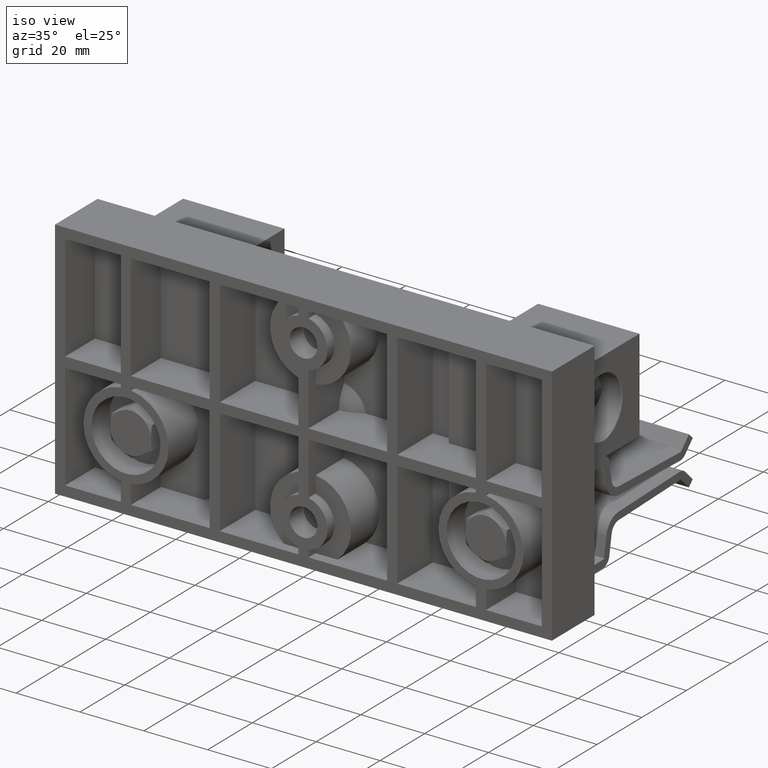
[diagram: clean part render]
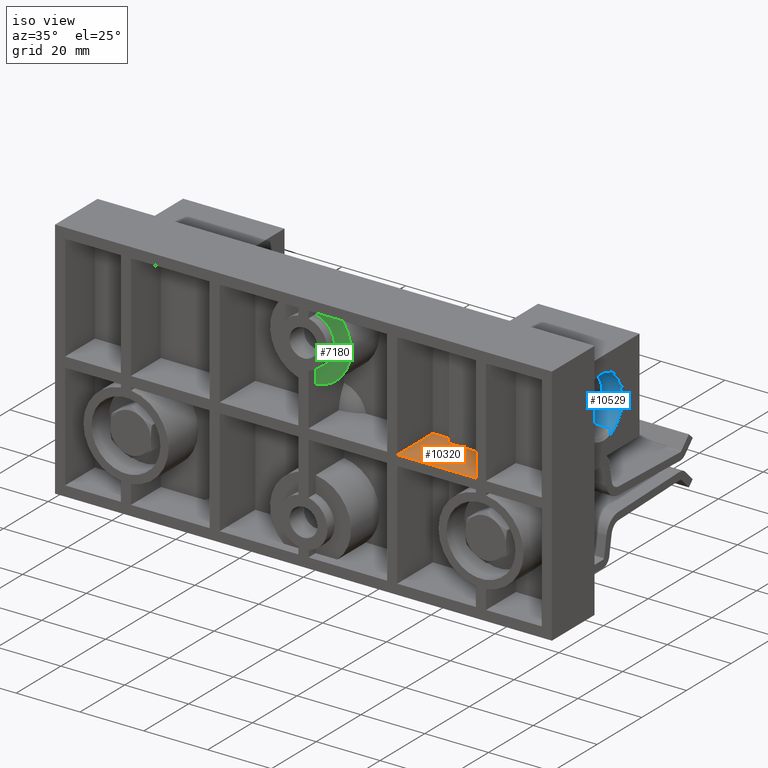
[diagram: same view with three faces highlighted in distinct colors, each labeled with its STEP entity id]
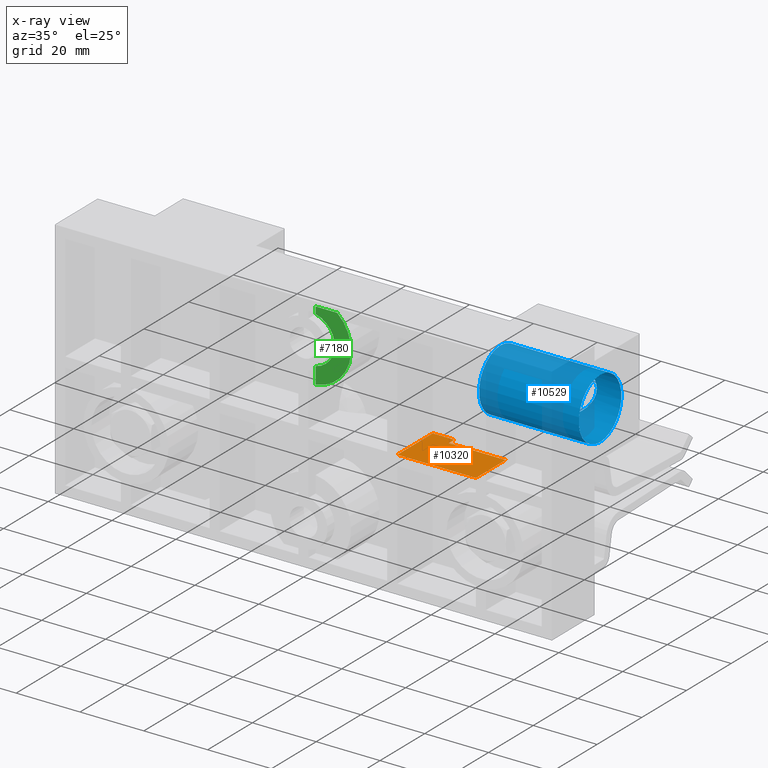
[diagram: x-ray of the same camera — body ghosted, the three highlighted faces saturated]
A machine part, iso view with three faces highlighted in distinct colors.
The next image is the same camera in x-ray (body ghosted, the three faces saturated) — at least one of them is partly hidden behind the body in this view.
Their STEP definitions:

[orange] entity #10320 — the highlighted planar face has unit normal (0, -0, -1).
#706 = EDGE_CURVE ( 'NONE', #15453, #16737, #32580, .T. ) ;
#3698 = VERTEX_POINT ( 'NONE', #7718 ) ;
#4290 = CARTESIAN_POINT ( 'NONE',  ( 1.157500000000000200, -6.491294169886310300, 0.06249999999999972900 ) ) ;
#5666 = DIRECTION ( 'NONE',  ( 0.0000000000000000000, 1.000000000000000000, 1.848892746611746400E-032 ) ) ;
#5689 = ORIENTED_EDGE ( 'NONE', *, *, #15011, .T. ) ;
#6105 = FACE_OUTER_BOUND ( 'NONE', #31177, .T. ) ;
#6520 = CARTESIAN_POINT ( 'NONE',  ( 2.127500000000000400, 1.251854463851701300E-033, 0.06249999999999989600 ) ) ;
#6596 = CARTESIAN_POINT ( 'NONE',  ( 1.425000000000000000, 0.6500000000000000200, 0.06249999999999981300 ) ) ;
#6764 = ORIENTED_EDGE ( 'NONE', *, *, #706, .F. ) ;
#7705 = VECTOR ( 'NONE', #14120, 39.37007874015748100 ) ;
#7718 = CARTESIAN_POINT ( 'NONE',  ( 2.127500000000000400, 0.5250000000000000200, 0.06249999999999999300 ) ) ;
#7732 = VECTOR ( 'NONE', #12566, 39.37007874015748100 ) ;
#8524 = CARTESIAN_POINT ( 'NONE',  ( 2.127500000000000400, 1.251854463851701300E-033, 0.06249999999999989600 ) ) ;
#8803 = ORIENTED_EDGE ( 'NONE', *, *, #23106, .F. ) ;
#9694 = CARTESIAN_POINT ( 'NONE',  ( 1.425000000000000000, 0.6250000000000000000, 0.06249999999999981300 ) ) ;
#10023 = CARTESIAN_POINT ( 'NONE',  ( 1.157500000000000200, 1.251854463851696800E-033, 0.06249999999999967400 ) ) ;
#10266 = EDGE_CURVE ( 'NONE', #15453, #18958, #19091, .T. ) ;
#10320 = ADVANCED_FACE ( 'NONE', ( #6105 ), #18923, .F. ) ;
#12053 = EDGE_CURVE ( 'NONE', #18958, #3698, #26122, .T. ) ;
#12566 = DIRECTION ( 'NONE',  ( -1.000000000000000000, -3.525645469518481200E-048, -1.760211336123880400E-016 ) ) ;
#13810 = CARTESIAN_POINT ( 'NONE',  ( 1.425000000000000000, 0.5250000000000000200, 0.06249999999999981300 ) ) ;
#13826 = CARTESIAN_POINT ( 'NONE',  ( 2.127500000000000400, -6.491294169886310300, 0.06249999999999989600 ) ) ;
#14120 = DIRECTION ( 'NONE',  ( -1.000000000000000000, -3.525645469518481200E-048, -1.760211336123880400E-016 ) ) ;
#14892 = EDGE_CURVE ( 'NONE', #30348, #16737, #18260, .T. ) ;
#15011 = EDGE_CURVE ( 'NONE', #3698, #31193, #21455, .T. ) ;
#15453 = VERTEX_POINT ( 'NONE', #10023 ) ;
#16452 = DIRECTION ( 'NONE',  ( -1.000000000000000000, -3.525645469518481200E-048, -1.760211336123880400E-016 ) ) ;
#16737 = VERTEX_POINT ( 'NONE', #17320 ) ;
#16878 = LINE ( 'NONE', #6596, #30667 ) ;
#17320 = CARTESIAN_POINT ( 'NONE',  ( 1.157500000000000200, 0.6250000000000000000, 0.06249999999999967400 ) ) ;
#18260 = LINE ( 'NONE', #28109, #7732 ) ;
#18739 = VECTOR ( 'NONE', #33457, 39.37007874015748100 ) ;
#18923 = PLANE ( 'NONE',  #24943 ) ;
#18958 = VERTEX_POINT ( 'NONE', #6520 ) ;
#19091 = LINE ( 'NONE', #8524, #32923 ) ;
#21376 = ORIENTED_EDGE ( 'NONE', *, *, #10266, .T. ) ;
#21455 = LINE ( 'NONE', #29641, #7705 ) ;
#23106 = EDGE_CURVE ( 'NONE', #30348, #31193, #16878, .T. ) ;
#23248 = CARTESIAN_POINT ( 'NONE',  ( 2.127500000000000400, -6.491294169886310300, 0.06249999999999989600 ) ) ;
#24776 = DIRECTION ( 'NONE',  ( 0.0000000000000000000, -1.000000000000000000, -1.848892746611746400E-032 ) ) ;
#24943 = AXIS2_PLACEMENT_3D ( 'NONE', #13826, #32000, #16452 ) ;
#25151 = ORIENTED_EDGE ( 'NONE', *, *, #12053, .T. ) ;
#26122 = LINE ( 'NONE', #23248, #33026 ) ;
#26669 = DIRECTION ( 'NONE',  ( 1.000000000000000000, 3.525645469518481200E-048, 1.760211336123880600E-016 ) ) ;
#28109 = CARTESIAN_POINT ( 'NONE',  ( 2.127500000000000400, 0.6250000000000000000, 0.06249999999999989600 ) ) ;
#28942 = ORIENTED_EDGE ( 'NONE', *, *, #14892, .T. ) ;
#29641 = CARTESIAN_POINT ( 'NONE',  ( 2.670000000000000800, 0.5250000000000000200, 0.06250000000000008300 ) ) ;
#30348 = VERTEX_POINT ( 'NONE', #9694 ) ;
#30667 = VECTOR ( 'NONE', #24776, 39.37007874015748100 ) ;
#31177 = EDGE_LOOP ( 'NONE', ( #25151, #5689, #8803, #28942, #6764, #21376 ) ) ;
#31193 = VERTEX_POINT ( 'NONE', #13810 ) ;
#32000 = DIRECTION ( 'NONE',  ( 1.760211336123880400E-016, -2.002967142162725300E-032, -1.000000000000000000 ) ) ;
#32580 = LINE ( 'NONE', #4290, #18739 ) ;
#32923 = VECTOR ( 'NONE', #26669, 39.37007874015748100 ) ;
#33026 = VECTOR ( 'NONE', #5666, 39.37007874015748100 ) ;
#33457 = DIRECTION ( 'NONE',  ( 0.0000000000000000000, 1.000000000000000000, 1.848892746611746400E-032 ) ) ;

[blue] entity #10529 — the highlighted cylindrical surface (bore or boss wall) has radius 9.525 mm, axis along (1, 0, -0).
#77 = CARTESIAN_POINT ( 'NONE',  ( 2.076729371973679700, 1.456088121580337000, 0.2605831482120392600 ) ) ;
#192 = CARTESIAN_POINT ( 'NONE',  ( 1.889426613517369600, 1.585115899064179400, 0.4658351807576715000 ) ) ;
#300 = CARTESIAN_POINT ( 'NONE',  ( 1.927638943650036700, 1.554348950492414200, 0.7220675081575735900 ) ) ;
#411 = CARTESIAN_POINT ( 'NONE',  ( 2.200595194546536500, 1.427274423711046000, 0.8645097015957117200 ) ) ;
#533 = CARTESIAN_POINT ( 'NONE',  ( 2.434920143995373800, 1.540785408963850600, 0.7471081315087929600 ) ) ;
#1871 = AXIS2_PLACEMENT_3D ( 'NONE', #14802, #32978, #17431 ) ;
#2020 = ORIENTED_EDGE ( 'NONE', *, *, #20491, .T. ) ;
#2505 = CARTESIAN_POINT ( 'NONE',  ( 2.484203384870641500, 1.579890123181407800, 0.4461036839594217900 ) ) ;
#2609 = DIRECTION ( 'NONE',  ( 1.000000000000000000, 2.259772907814062200E-018, -1.249000902703300900E-016 ) ) ;
#2616 = CARTESIAN_POINT ( 'NONE',  ( 2.274996675548262900, 1.443178687525208800, 0.2505498501693820300 ) ) ;
#2719 = CARTESIAN_POINT ( 'NONE',  ( 2.032514348025869800, 1.480038386484674000, 0.2813997691194785600 ) ) ;
#2827 = CARTESIAN_POINT ( 'NONE',  ( 1.879873545745861300, 1.593015831589233300, 0.5079302932660024700 ) ) ;
#2936 = CARTESIAN_POINT ( 'NONE',  ( 1.957381491978031200, 1.531432401457970100, 0.7615666289502911500 ) ) ;
#3052 = CARTESIAN_POINT ( 'NONE',  ( 2.233170940279762400, 1.431465004822856800, 0.8616960141459256700 ) ) ;
#3169 = CARTESIAN_POINT ( 'NONE',  ( 2.467900366343614800, 1.566660563706562000, 0.6964205671180381300 ) ) ;
#5148 = CARTESIAN_POINT ( 'NONE',  ( 2.472172709297785400, 1.570120347077986800, 0.4173067961107270200 ) ) ;
#5269 = CARTESIAN_POINT ( 'NONE',  ( 2.233624354778424200, 1.431557944320314100, 0.2423672789926299700 ) ) ;
#5308 = CARTESIAN_POINT ( 'NONE',  ( 1.575000000000002000, 1.220000000000000200, 0.1770000000000012100 ) ) ;
#5377 = CARTESIAN_POINT ( 'NONE',  ( 1.985399832363596600, 1.511100703186462100, 0.3150025900852628200 ) ) ;
#5487 = CARTESIAN_POINT ( 'NONE',  ( 1.877476023150124900, 1.595019980692326200, 0.5622380897981260600 ) ) ;
#5599 = CARTESIAN_POINT ( 'NONE',  ( 2.000070276166645100, 1.500877146243951200, 0.8009045910841198200 ) ) ;
#5700 = CARTESIAN_POINT ( 'NONE',  ( 2.264309585431889100, 1.439987562914610200, 0.8557174141473121700 ) ) ;
#5807 = CARTESIAN_POINT ( 'NONE',  ( 2.484104695817396900, 1.579809461384663400, 0.6581651954283848100 ) ) ;
#6044 = FACE_OUTER_BOUND ( 'NONE', #29903, .T. ) ;
#7245 = CIRCLE ( 'NONE', #26959, 0.3749999999999997800 ) ;
#7755 = CARTESIAN_POINT ( 'NONE',  ( 2.457607222590166600, 1.558486696659012700, 0.3903000177563564800 ) ) ;
#7875 = CARTESIAN_POINT ( 'NONE',  ( 2.190179932019259200, 1.426430009674327000, 0.2389351250495142200 ) ) ;
#7982 = CARTESIAN_POINT ( 'NONE',  ( 1.945154614197689400, 1.540728088072823800, 0.3567961740516500400 ) ) ;
#8100 = CARTESIAN_POINT ( 'NONE',  ( 1.880281309584269600, 1.592684893733345100, 0.5950035460913799500 ) ) ;
#8204 = CARTESIAN_POINT ( 'NONE',  ( 2.048948502195003600, 1.470242094124482300, 0.8315524413779806800 ) ) ;
#8318 = CARTESIAN_POINT ( 'NONE',  ( 2.293747620889427600, 1.451632752042168800, 0.8469523053104890400 ) ) ;
#8442 = CARTESIAN_POINT ( 'NONE',  ( 2.493431239947439400, 1.587474724682770300, 0.6275179987207620800 ) ) ;
#10379 = CARTESIAN_POINT ( 'NONE',  ( 2.435072418738516700, 1.540901560272484300, 0.3570780561970851000 ) ) ;
#10496 = CARTESIAN_POINT ( 'NONE',  ( 2.146715002092181500, 1.431487746786460400, 0.2423194597841897600 ) ) ;
#10529 = ADVANCED_FACE ( 'NONE', ( #26774, #19837, #6044 ), #22653, .F. ) ;
#10610 = CARTESIAN_POINT ( 'NONE',  ( 1.922611024469002400, 1.558314084703363400, 0.3899390096383008000 ) ) ;
#10724 = CARTESIAN_POINT ( 'NONE',  ( 1.888582233568351100, 1.585807708269862300, 0.6372395778091134400 ) ) ;
#10837 = CARTESIAN_POINT ( 'NONE',  ( 2.104823711560048800, 1.443246645103392500, 0.8534003888910246500 ) ) ;
#10942 = CARTESIAN_POINT ( 'NONE',  ( 2.330589071167014300, 1.469975404053278900, 0.8317915050968495100 ) ) ;
#11062 = CARTESIAN_POINT ( 'NONE',  ( 2.502500000000003100, 1.594999999999999300, 0.5740927859111840700 ) ) ;
#12156 = VERTEX_POINT ( 'NONE', #13321 ) ;
#12843 = CARTESIAN_POINT ( 'NONE',  ( 2.502500000000003100, 1.594999999999999500, 0.5520000000000008200 ) ) ;
#12953 = CARTESIAN_POINT ( 'NONE',  ( 2.394846192405821300, 1.511274027202478300, 0.3152144535535706400 ) ) ;
#13060 = CARTESIAN_POINT ( 'NONE',  ( 2.115652693129075800, 1.440000808203548000, 0.2482921960399988000 ) ) ;
#13169 = CARTESIAN_POINT ( 'NONE',  ( 1.908006897051064900, 1.569975580438093900, 0.4169324759415570800 ) ) ;
#13277 = CARTESIAN_POINT ( 'NONE',  ( 1.907672666767200200, 1.570244988554368800, 0.6863706906566156000 ) ) ;
#13321 = CARTESIAN_POINT ( 'NONE',  ( 2.502500000000002200, 1.594999999999999800, 0.5520000000000008200 ) ) ;
#13393 = CARTESIAN_POINT ( 'NONE',  ( 2.146180077662003700, 1.431597836331096200, 0.8616055508102584700 ) ) ;
#13511 = CARTESIAN_POINT ( 'NONE',  ( 2.379511283201087400, 1.500593694086973500, 0.8012220869116526400 ) ) ;
#14717 = DIRECTION ( 'NONE',  ( 1.000000000000000000, 2.259772907814062200E-018, -1.249000902703300900E-016 ) ) ;
#14802 = CARTESIAN_POINT ( 'NONE',  ( 2.805000000000001900, 1.220000000000000200, 0.5520000000000008200 ) ) ;
#14920 = AXIS2_PLACEMENT_3D ( 'NONE', #22515, #14717, #17455 ) ;
#15279 = EDGE_CURVE ( 'NONE', #30820, #30820, #7245, .T. ) ;
#15463 = CARTESIAN_POINT ( 'NONE',  ( 2.500184974921040700, 1.593064662412489100, 0.5083718195304811600 ) ) ;
#15581 = CARTESIAN_POINT ( 'NONE',  ( 2.347775156086311800, 1.480214822509445100, 0.2815689996831779500 ) ) ;
#15702 = CARTESIAN_POINT ( 'NONE',  ( 2.086211819713367900, 1.451650845079862400, 0.2570618466647212600 ) ) ;
#15765 = EDGE_LOOP ( 'NONE', ( #28808 ) ) ;
#15815 = CARTESIAN_POINT ( 'NONE',  ( 1.895960244185245000, 1.579756357952722700, 0.4456545311868006500 ) ) ;
#15918 = CARTESIAN_POINT ( 'NONE',  ( 1.922221025574155600, 1.558622547381050700, 0.7134157502519256100 ) ) ;
#15979 = EDGE_LOOP ( 'NONE', ( #23362 ) ) ;
#16021 = CARTESIAN_POINT ( 'NONE',  ( 2.178840044139652500, 1.427304059757816800, 0.8644900432399641500 ) ) ;
#16130 = CARTESIAN_POINT ( 'NONE',  ( 2.422294958642234400, 1.531189906480805200, 0.7619264471187223700 ) ) ;
#17431 = DIRECTION ( 'NONE',  ( 0.0000000000000000000, 0.0000000000000000000, -1.000000000000000000 ) ) ;
#17455 = DIRECTION ( 'NONE',  ( 0.0000000000000000000, 0.0000000000000000000, -1.000000000000000000 ) ) ;
#18056 = CARTESIAN_POINT ( 'NONE',  ( 2.490730009472617900, 1.585244859911247600, 0.4663780237152411700 ) ) ;
#18164 = CARTESIAN_POINT ( 'NONE',  ( 1.575000000000002000, 1.220000000000000200, 0.5520000000000009300 ) ) ;
#18171 = CARTESIAN_POINT ( 'NONE',  ( 2.294598295035628100, 1.451658883648159900, 0.2568650238349315900 ) ) ;
#18277 = CARTESIAN_POINT ( 'NONE',  ( 2.049435036576627800, 1.469963443034439500, 0.2721986279952808800 ) ) ;
#18395 = CARTESIAN_POINT ( 'NONE',  ( 1.886611355509239200, 1.587439560135993900, 0.4763187139114031800 ) ) ;
#18513 = CARTESIAN_POINT ( 'NONE',  ( 1.944756663569897600, 1.541032134355121900, 0.7467102483605194700 ) ) ;
#18615 = CARTESIAN_POINT ( 'NONE',  ( 2.211461255747820600, 1.428120887174655400, 0.8639531467452104000 ) ) ;
#18722 = CARTESIAN_POINT ( 'NONE',  ( 2.457711207490345600, 1.558506561657717200, 0.7144308138858743700 ) ) ;
#19837 = FACE_OUTER_BOUND ( 'NONE', #15765, .T. ) ;
#20491 = EDGE_CURVE ( 'NONE', #32871, #32871, #31551, .T. ) ;
#20636 = CARTESIAN_POINT ( 'NONE',  ( 2.480478228766459700, 1.576847896102608000, 0.4363017041650571500 ) ) ;
#20739 = DIRECTION ( 'NONE',  ( 0.0000000000000000000, 0.0000000000000000000, -1.000000000000000000 ) ) ;
#20743 = CARTESIAN_POINT ( 'NONE',  ( 2.244195908030794500, 1.434032315025293800, 0.2440565831609531300 ) ) ;
#20859 = CARTESIAN_POINT ( 'NONE',  ( 2.000517733411136600, 1.500573985286393100, 0.3027557700193341300 ) ) ;
#20975 = CARTESIAN_POINT ( 'NONE',  ( 1.877550355764390400, 1.594958036895600700, 0.5294015891676753200 ) ) ;
#21093 = CARTESIAN_POINT ( 'NONE',  ( 1.984967947175891200, 1.511405067026604600, 0.7886250188773108500 ) ) ;
#21193 = CARTESIAN_POINT ( 'NONE',  ( 2.243785020963663200, 1.433928590492509200, 0.8600151841441063800 ) ) ;
#21307 = CARTESIAN_POINT ( 'NONE',  ( 2.480380683676477000, 1.576768464352269300, 0.6679427639084706300 ) ) ;
#21327 = EDGE_CURVE ( 'NONE', #12156, #12156, #32845, .T. ) ;
#22515 = CARTESIAN_POINT ( 'NONE',  ( 2.815000000000002200, 1.220000000000000200, 0.5520000000000008200 ) ) ;
#22653 = CYLINDRICAL_SURFACE ( 'NONE', #14920, 0.3749999999999998300 ) ;
#23301 = CARTESIAN_POINT ( 'NONE',  ( 2.467592077807055700, 1.566434669012709100, 0.4081141140390057200 ) ) ;
#23362 = ORIENTED_EDGE ( 'NONE', *, *, #21327, .T. ) ;
#23413 = CARTESIAN_POINT ( 'NONE',  ( 2.211903827643621600, 1.428166897321944400, 0.2400773676329013800 ) ) ;
#23526 = CARTESIAN_POINT ( 'NONE',  ( 1.957782979694255200, 1.531132022328925300, 0.3419898659981863200 ) ) ;
#23634 = CARTESIAN_POINT ( 'NONE',  ( 1.878038277479119800, 1.594551036765878800, 0.5733273498370820000 ) ) ;
#23752 = CARTESIAN_POINT ( 'NONE',  ( 2.032054589015778800, 1.480317928959389500, 0.8223332066306194800 ) ) ;
#23864 = CARTESIAN_POINT ( 'NONE',  ( 2.274279478249852100, 1.443591577284297500, 0.8530936744505281900 ) ) ;
#23980 = CARTESIAN_POINT ( 'NONE',  ( 2.490622949963019000, 1.585156725865134200, 0.6379910621967386200 ) ) ;
#25699 = CARTESIAN_POINT ( 'NONE',  ( 2.502500000000002600, 1.594999999999999800, 0.5299072140888182500 ) ) ;
#25915 = CARTESIAN_POINT ( 'NONE',  ( 2.452185831167187100, 1.554211464202786000, 0.3816634475934929700 ) ) ;
#26022 = CARTESIAN_POINT ( 'NONE',  ( 2.168449155216876500, 1.428129562791547300, 0.2400525859678115400 ) ) ;
#26142 = CARTESIAN_POINT ( 'NONE',  ( 1.928037389962729000, 1.554036348980290000, 0.3813212737455298200 ) ) ;
#26258 = CARTESIAN_POINT ( 'NONE',  ( 1.881957196889167100, 1.591291776673859500, 0.6056789794803293400 ) ) ;
#26296 = CARTESIAN_POINT ( 'NONE',  ( 2.805000000000001900, 1.220000000000000200, 0.1770000000000009300 ) ) ;
#26365 = CARTESIAN_POINT ( 'NONE',  ( 2.085207517353446300, 1.451747804861236700, 0.8470654640824540900 ) ) ;
#26471 = CARTESIAN_POINT ( 'NONE',  ( 2.303250709023805700, 1.456078142824347900, 0.8434251322717326600 ) ) ;
#26579 = CARTESIAN_POINT ( 'NONE',  ( 2.500180006142437500, 1.593060330012553600, 0.5957442089514943800 ) ) ;
#26774 = FACE_BOUND ( 'NONE', #15979, .T. ) ;
#26959 = AXIS2_PLACEMENT_3D ( 'NONE', #18164, #2609, #20739 ) ;
#28499 = CARTESIAN_POINT ( 'NONE',  ( 2.422447444519070500, 1.531304370099479100, 0.3422440868875184000 ) ) ;
#28609 = CARTESIAN_POINT ( 'NONE',  ( 2.136155097985205800, 1.433944168053812100, 0.2439956514070245300 ) ) ;
#28716 = CARTESIAN_POINT ( 'NONE',  ( 1.912596765167997600, 1.566283280521046000, 0.4077499596628408300 ) ) ;
#28808 = ORIENTED_EDGE ( 'NONE', *, *, #15279, .F. ) ;
#28826 = CARTESIAN_POINT ( 'NONE',  ( 1.895219854843391400, 1.580333733706644500, 0.6577957391059408000 ) ) ;
#28934 = CARTESIAN_POINT ( 'NONE',  ( 2.135640704268791700, 1.434073612670435200, 0.8599148471600938100 ) ) ;
#29058 = CARTESIAN_POINT ( 'NONE',  ( 2.347518979857295300, 1.480058692829396400, 0.8225807569836395300 ) ) ;
#29180 = CARTESIAN_POINT ( 'NONE',  ( 2.502500000000003100, 1.594999999999999500, 0.5520000000000008200 ) ) ;
#29903 = EDGE_LOOP ( 'NONE', ( #2020 ) ) ;
#30820 = VERTEX_POINT ( 'NONE', #5308 ) ;
#31113 = CARTESIAN_POINT ( 'NONE',  ( 2.379736870600535500, 1.500746921694336100, 0.3029501139427416300 ) ) ;
#31222 = CARTESIAN_POINT ( 'NONE',  ( 2.105685669262378700, 1.443604637757665700, 0.2509159680549265500 ) ) ;
#31335 = CARTESIAN_POINT ( 'NONE',  ( 1.899688750035625400, 1.576711954731111500, 0.4358848661449800100 ) ) ;
#31450 = CARTESIAN_POINT ( 'NONE',  ( 1.912249980075671400, 1.566561284649972800, 0.6955811617378260300 ) ) ;
#31551 = CIRCLE ( 'NONE', #1871, 0.3749999999999998900 ) ;
#31562 = CARTESIAN_POINT ( 'NONE',  ( 2.167924405770235800, 1.428184510967772200, 0.8639109661836758000 ) ) ;
#31673 = CARTESIAN_POINT ( 'NONE',  ( 2.394646370061376900, 1.511132868058954600, 0.7889597523445480700 ) ) ;
#32845 = B_SPLINE_CURVE_WITH_KNOTS ( 'NONE', 3,
 ( #12843, #25699, #15463, #33634, #18056, #2505, #20636, #5148, #23301, #7755, #25915, #10379, #28499, #12953, #31113, #15581, #33756, #18171, #2616, #20743, #5269, #23413, #7875, #26022, #10496, #28609, #13060, #31222, #15702, #77, #18277, #2719, #20859, #5377, #23526, #7982, #26142, #10610, #28716, #13169, #31335, #15815, #192, #18395, #2827, #20975, #5487, #23634, #8100, #26258, #10724, #28826, #13277, #31450, #15918, #300, #18513, #2936, #21093, #5599, #23752, #8204, #26365, #10837, #28934, #13393, #31562, #16021, #411, #18615, #3052, #21193, #5700, #23864, #8318, #26471, #10942, #29058, #13511, #31673, #16130, #533, #18722, #3169, #21307, #5807, #23980, #8442, #26579, #11062, #29180 ),
 .UNSPECIFIED., .T., .F.,
 ( 4, 2, 2, 2, 2, 2, 2, 2, 2, 2, 2, 1, 2, 2, 2, 2, 2, 2, 2, 2, 2, 2, 2, 2, 2, 2, 2, 2, 2, 2, 2, 2, 2, 2, 2, 2, 2, 2, 2, 2, 2, 2, 2, 2, 2, 4 ),
 ( 0.0000000000000000000, 0.001655461987105077400, 0.002483192980657618900, 0.003310923974210159900, 0.004138654967762700100, 0.004966385961315251600, 0.006621847948420355400, 0.008277309935525457500, 0.009932771922630562200, 0.01158823390973566700, 0.01241596490328821800, 0.01324369589684077000, 0.01407142689039331800, 0.01489915788394587100, 0.01572688887749841900, 0.01655461987105097100, 0.01821008185815610100, 0.01986554384526123200, 0.02152100583236636300, 0.02234873682591892800, 0.02317646781947149300, 0.02400419881302406200, 0.02483192980657663100, 0.02648739179368176200, 0.02731512278723432400, 0.02814285378078688500, 0.02979831576789201300, 0.03062604676144457800, 0.03145377775499714300, 0.03310923974210228800, 0.03476470172920743300, 0.03642016371631257000, 0.03807562570341771500, 0.03890335669697028700, 0.03973108769052286600, 0.04055881868407543900, 0.04138654967762801100, 0.04221428067118059000, 0.04304201166473316200, 0.04469747365183828600, 0.04635293563894340300, 0.04800839762604853400, 0.04966385961315365700, 0.05049159060670621600, 0.05131932160025878100, 0.05297478358736391200 ),
 .UNSPECIFIED. ) ;
#32871 = VERTEX_POINT ( 'NONE', #26296 ) ;
#32978 = DIRECTION ( 'NONE',  ( 1.000000000000000000, 2.259772907814062200E-018, -1.249000902703300900E-016 ) ) ;
#33634 = CARTESIAN_POINT ( 'NONE',  ( 2.493515229421008300, 1.587544130559896700, 0.4768320067517088900 ) ) ;
#33756 = CARTESIAN_POINT ( 'NONE',  ( 2.330884080888809200, 1.470146675565828100, 0.2723624967347343900 ) ) ;

[green] entity #7180 — the highlighted planar face has unit normal (0, -1, -0).
#1759 = EDGE_CURVE ( 'NONE', #18143, #13585, #3435, .T. ) ;
#2265 = ORIENTED_EDGE ( 'NONE', *, *, #8992, .T. ) ;
#2298 = CARTESIAN_POINT ( 'NONE',  ( 0.0000000000000000000, 0.1250000000000001700, 1.000000000000000000 ) ) ;
#3435 = LINE ( 'NONE', #10565, #16466 ) ;
#3767 = VECTOR ( 'NONE', #7451, 39.37007874015748100 ) ;
#4348 = CIRCLE ( 'NONE', #17687, 0.5000000000000000000 ) ;
#4929 = DIRECTION ( 'NONE',  ( -1.000000000000000000, 0.0000000000000000000, 0.0000000000000000000 ) ) ;
#5124 = CARTESIAN_POINT ( 'NONE',  ( 0.06249999999999993800, 0.1250000000000000600, 0.5039216291753893000 ) ) ;
#5374 = FACE_OUTER_BOUND ( 'NONE', #20910, .T. ) ;
#6732 = CARTESIAN_POINT ( 'NONE',  ( 0.0000000000000000000, 0.1250000000000000600, 1.000000000000000000 ) ) ;
#6747 = CARTESIAN_POINT ( 'NONE',  ( 0.06249999999999995100, 0.1250000000000001700, 0.7096506414679032400 ) ) ;
#6883 = DIRECTION ( 'NONE',  ( -0.0000000000000000000, 1.000000000000000000, 1.848892746611746400E-032 ) ) ;
#7180 = ADVANCED_FACE ( 'NONE', ( #5374 ), #16965, .T. ) ;
#7441 = CARTESIAN_POINT ( 'NONE',  ( 0.06250000000000022200, 0.1250000000000000300, 1.375000000000000200 ) ) ;
#7451 = DIRECTION ( 'NONE',  ( 3.975198208018543900E-017, -2.002967142162725300E-032, -1.000000000000000000 ) ) ;
#7616 = CARTESIAN_POINT ( 'NONE',  ( 0.06249999999999995100, 0.1250000000000001700, 0.8397572154510537500 ) ) ;
#7830 = DIRECTION ( 'NONE',  ( 1.000000000000000000, 0.0000000000000000000, 0.0000000000000000000 ) ) ;
#8992 = EDGE_CURVE ( 'NONE', #22849, #22625, #31067, .T. ) ;
#9382 = DIRECTION ( 'NONE',  ( -1.000000000000000000, -0.0000000000000000000, -0.0000000000000000000 ) ) ;
#10344 = DIRECTION ( 'NONE',  ( 0.0000000000000000000, -2.002967142162725300E-032, -1.000000000000000000 ) ) ;
#10543 = ORIENTED_EDGE ( 'NONE', *, *, #26088, .F. ) ;
#10565 = CARTESIAN_POINT ( 'NONE',  ( 3.064999999999999500, 0.1250000000000000300, 1.375000000000000200 ) ) ;
#13397 = VECTOR ( 'NONE', #10344, 39.37007874015748100 ) ;
#13585 = VERTEX_POINT ( 'NONE', #21884 ) ;
#14360 = VERTEX_POINT ( 'NONE', #5124 ) ;
#15156 = CARTESIAN_POINT ( 'NONE',  ( 0.06249999999999993800, 0.1250000000000001700, 1.375000000000000200 ) ) ;
#16466 = VECTOR ( 'NONE', #7830, 39.37007874015748100 ) ;
#16965 = PLANE ( 'NONE',  #18370 ) ;
#17578 = LINE ( 'NONE', #15156, #3767 ) ;
#17687 = AXIS2_PLACEMENT_3D ( 'NONE', #22382, #6883, #25071 ) ;
#18143 = VERTEX_POINT ( 'NONE', #7441 ) ;
#18370 = AXIS2_PLACEMENT_3D ( 'NONE', #6732, #24911, #9382 ) ;
#19819 = EDGE_CURVE ( 'NONE', #22625, #14360, #20284, .T. ) ;
#20284 = LINE ( 'NONE', #7616, #13397 ) ;
#20438 = DIRECTION ( 'NONE',  ( -0.0000000000000000000, 1.000000000000000000, 1.848892746611746400E-032 ) ) ;
#20910 = EDGE_LOOP ( 'NONE', ( #23479, #10543, #23001, #29908, #2265 ) ) ;
#21884 = CARTESIAN_POINT ( 'NONE',  ( 0.3307189138830735600, 0.1250000000000000600, 1.375000000000000200 ) ) ;
#22382 = CARTESIAN_POINT ( 'NONE',  ( 0.0000000000000000000, 0.1250000000000000600, 1.000000000000000000 ) ) ;
#22625 = VERTEX_POINT ( 'NONE', #6747 ) ;
#22849 = VERTEX_POINT ( 'NONE', #23422 ) ;
#23001 = ORIENTED_EDGE ( 'NONE', *, *, #1759, .F. ) ;
#23422 = CARTESIAN_POINT ( 'NONE',  ( 0.06249999999999995100, 0.1250000000000001700, 1.290349358532096600 ) ) ;
#23479 = ORIENTED_EDGE ( 'NONE', *, *, #19819, .T. ) ;
#24572 = AXIS2_PLACEMENT_3D ( 'NONE', #2298, #20438, #4929 ) ;
#24911 = DIRECTION ( 'NONE',  ( 0.0000000000000000000, -1.000000000000000000, -1.848892746611746400E-032 ) ) ;
#25071 = DIRECTION ( 'NONE',  ( -1.000000000000000000, 0.0000000000000000000, -8.195543980992789700E-016 ) ) ;
#26088 = EDGE_CURVE ( 'NONE', #13585, #14360, #4348, .T. ) ;
#29908 = ORIENTED_EDGE ( 'NONE', *, *, #31558, .T. ) ;
#31067 = CIRCLE ( 'NONE', #24572, 0.2970000000000000400 ) ;
#31558 = EDGE_CURVE ( 'NONE', #18143, #22849, #17578, .T. ) ;